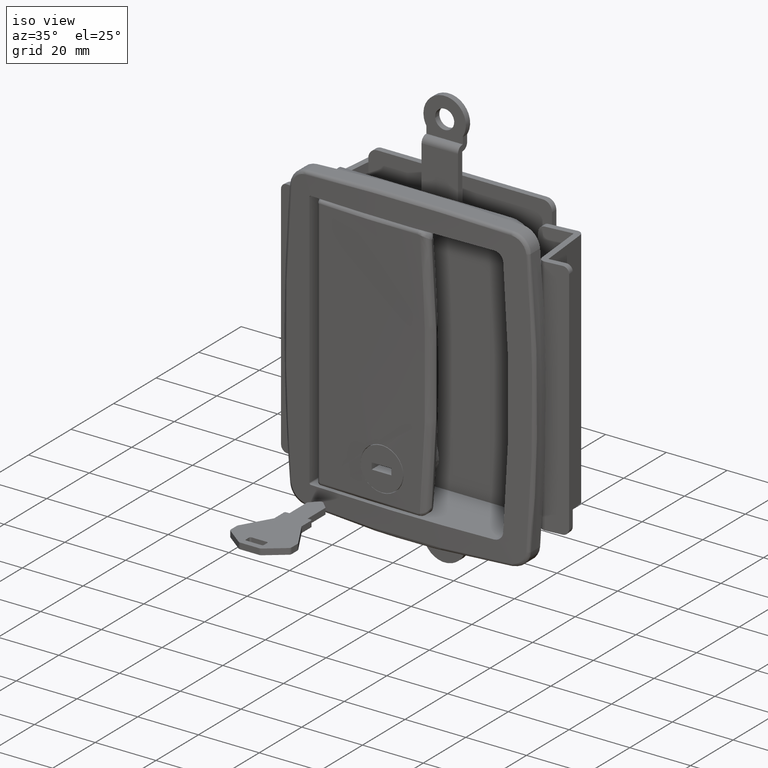
[diagram: clean part render]
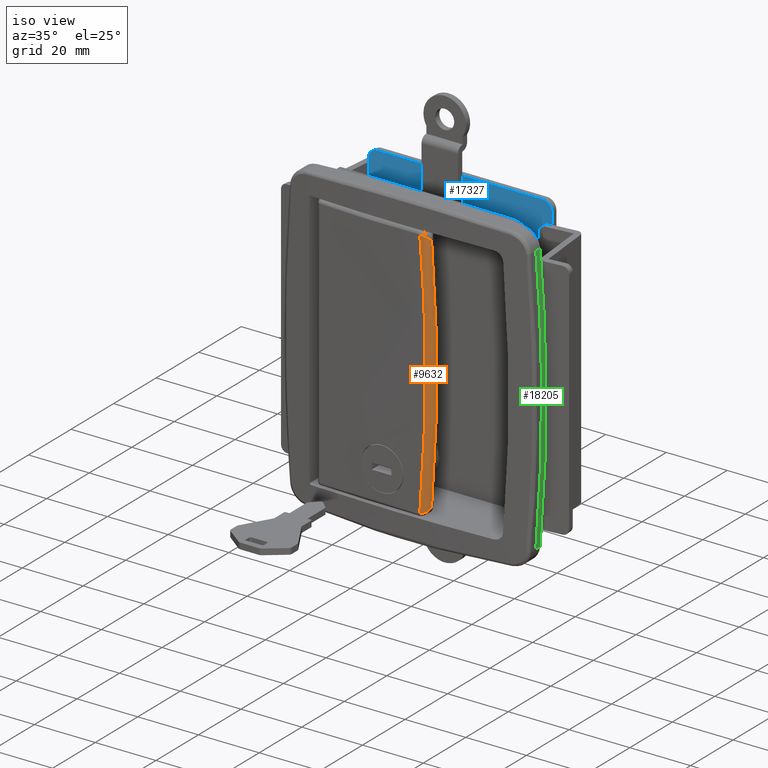
[diagram: same view with three faces highlighted in distinct colors, each labeled with its STEP entity id]
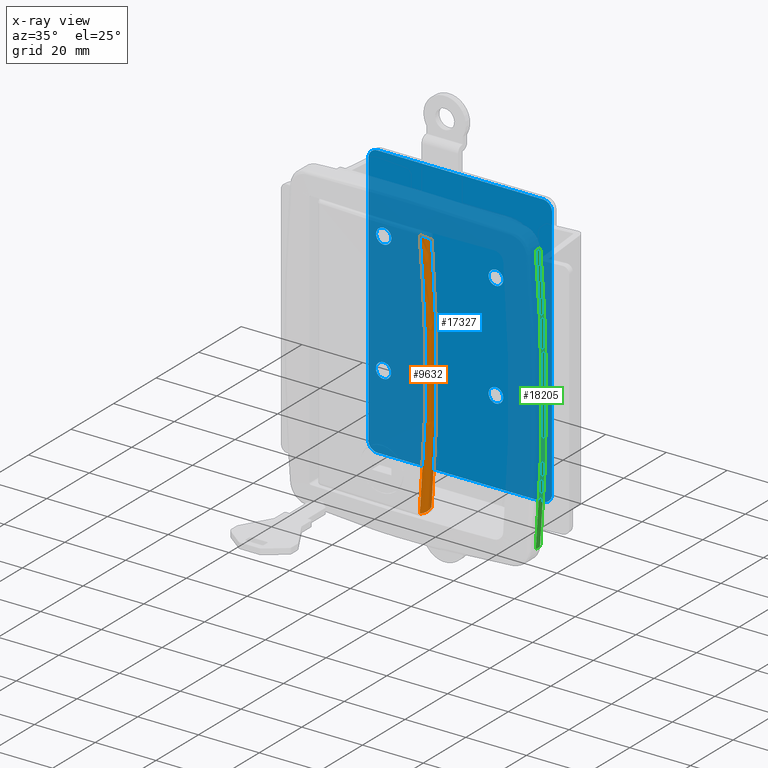
[diagram: x-ray of the same camera — body ghosted, the three highlighted faces saturated]
A machine part, iso view with three faces highlighted in distinct colors.
The next image is the same camera in x-ray (body ghosted, the three faces saturated) — at least one of them is partly hidden behind the body in this view.
Their STEP definitions:

[orange] entity #9632 — the highlighted face is a freeform B-spline surface patch.
#9057=CARTESIAN_POINT('',(46.003863983945202,-4.482355564156539,-41.391434274498252));
#9058=VERTEX_POINT('',#9057);
#9142=CARTESIAN_POINT('',(48.335545737265200,-2.281174498234175,-39.750793650793653));
#9143=VERTEX_POINT('',#9142);
#9175=CARTESIAN_POINT('',(46.003863983945301,-4.482355564156575,-41.391434274498252));
#9176=CARTESIAN_POINT('',(46.167167830635577,-4.481076019090385,-41.366672577074937));
#9177=CARTESIAN_POINT('',(46.325946904312623,-4.462470532601078,-41.335230200107482));
#9178=CARTESIAN_POINT('',(46.557714544627750,-4.411517104672070,-41.277502013211027));
#9179=CARTESIAN_POINT('',(46.633895292452088,-4.390654826432475,-41.256490160833323));
#9180=CARTESIAN_POINT('',(46.746532623330268,-4.353625546742983,-41.222164685216832));
#9181=CARTESIAN_POINT('',(46.783787030265323,-4.340322530823293,-41.210255425662808));
#9182=CARTESIAN_POINT('',(46.856839122804082,-4.312178249448661,-41.185787558939680));
#9183=CARTESIAN_POINT('',(46.892756209293097,-4.297299569544361,-41.173193569152033));
#9184=CARTESIAN_POINT('',(47.069401720184821,-4.219051233900527,-41.108435298684142));
#9185=CARTESIAN_POINT('',(47.201390910251703,-4.144231034285758,-41.050943870973192));
#9186=CARTESIAN_POINT('',(47.355503854106892,-4.036981977322908,-40.971777481546219));
#9187=CARTESIAN_POINT('',(47.385777958922070,-4.014839239979340,-40.955576731966737));
#9188=CARTESIAN_POINT('',(47.445230504749652,-3.969181584064518,-40.922425675873519));
#9189=CARTESIAN_POINT('',(47.474485642310682,-3.945600093122840,-40.905427856938779));
#9190=CARTESIAN_POINT('',(47.559943693324691,-3.873368832437162,-40.853685138556123));
#9191=CARTESIAN_POINT('',(47.613808881445010,-3.823300071060915,-40.818234509305050));
#9192=CARTESIAN_POINT('',(47.766700998906181,-3.667844989410870,-40.709041214775532));
#9193=CARTESIAN_POINT('',(47.857088781160712,-3.557250575331797,-40.632475367537680));
#9194=CARTESIAN_POINT('',(47.976384864066731,-3.381939399586430,-40.511732672510199));
#9195=CARTESIAN_POINT('',(48.013418631557883,-3.321921150749817,-40.470498299204543));
#9196=CARTESIAN_POINT('',(48.081999270425783,-3.198771583362087,-40.385956825226721));
#9197=CARTESIAN_POINT('',(48.113380615483123,-3.135900109728177,-40.342827966012202));
#9198=CARTESIAN_POINT('',(48.198195222748218,-2.945221717431362,-40.211927853800290));
#9199=CARTESIAN_POINT('',(48.242607085171379,-2.814911505480107,-40.122340419555961));
#9200=CARTESIAN_POINT('',(48.291208982386173,-2.616053470009769,-39.984731880892497));
#9201=CARTESIAN_POINT('',(48.304356812537897,-2.549361342222399,-39.938435082741037));
#9202=CARTESIAN_POINT('',(48.319501383708399,-2.448926159308541,-39.868411087292728));
#9203=CARTESIAN_POINT('',(48.323784320397941,-2.415394155200535,-39.844982035967583));
#9204=CARTESIAN_POINT('',(48.329059575551483,-2.365049607034340,-39.809719888764668));
#9205=CARTESIAN_POINT('',(48.330626383707681,-2.348260993733582,-39.797946539616632));
#9206=CARTESIAN_POINT('',(48.333376450051141,-2.314676517828916,-39.774364326857253));
#9207=CARTESIAN_POINT('',(48.334565086228316,-2.297778030785179,-39.762483161280592));
#9208=CARTESIAN_POINT('',(48.335545737265200,-2.281174498234190,-39.750793650793653));
#9209=B_SPLINE_CURVE_WITH_KNOTS('',3,(#9175,#9176,#9177,#9178,#9179,#9180,#9181,#9182,#9183,#9184,#9185,#9186,#9187,#9188,#9189,#9190,#9191,#9192,#9193,#9194,#9195,#9196,#9197,#9198,#9199,#9200,#9201,#9202,#9203,#9204,#9205,#9206,#9207,#9208),.UNSPECIFIED.,.F.,.U.,(4,2,2,2,2,2,2,2,2,2,2,2,2,2,2,2,4),(0.0,0.125000000000011,0.187500000000019,0.218750000000020,0.250000000000021,0.375000000000013,0.406250000000013,0.437500000000013,0.500000000000013,0.625000000000011,0.687500000000009,0.750000000000007,0.875000000000005,0.937500000000004,0.968750000000004,0.984375000000002,1.0),.UNSPECIFIED.);
#9210=EDGE_CURVE('',#9058,#9143,#9209,.T.);
#9407=CARTESIAN_POINT('',(46.003863983945301,-4.482355564156601,41.391434274498152));
#9408=VERTEX_POINT('',#9407);
#9494=CARTESIAN_POINT('',(48.335545737265200,-2.281174498234175,39.750793650793497));
#9495=VERTEX_POINT('',#9494);
#9496=CARTESIAN_POINT('',(48.335545737265200,-2.281174498234190,39.750793650793497));
#9497=CARTESIAN_POINT('',(48.334565086229588,-2.297778030796003,39.762483161265180));
#9498=CARTESIAN_POINT('',(48.333376450051240,-2.314676517829605,39.774364326856130));
#9499=CARTESIAN_POINT('',(48.330626383707781,-2.348260993734361,39.797946539615388));
#9500=CARTESIAN_POINT('',(48.329059575551433,-2.365049607033756,39.809719888765343));
#9501=CARTESIAN_POINT('',(48.323784320397891,-2.415394155200170,39.844982035967952));
#9502=CARTESIAN_POINT('',(48.319501383708399,-2.448926159308419,39.868411087292763));
#9503=CARTESIAN_POINT('',(48.304356812537911,-2.549361342222314,39.938435082741051));
#9504=CARTESIAN_POINT('',(48.291208982386188,-2.616053470009825,39.984731880892312));
#9505=CARTESIAN_POINT('',(48.242607085171393,-2.814911505480138,40.122340419555833));
#9506=CARTESIAN_POINT('',(48.198195222748197,-2.945221717431229,40.211927853800390));
#9507=CARTESIAN_POINT('',(48.113380615483102,-3.135900109728092,40.342827966012237));
#9508=CARTESIAN_POINT('',(48.081999270425783,-3.198771583362005,40.385956825226749));
#9509=CARTESIAN_POINT('',(48.013418631557862,-3.321921150749743,40.470498299204557));
#9510=CARTESIAN_POINT('',(47.976384864066752,-3.381939399586424,40.511732672510163));
#9511=CARTESIAN_POINT('',(47.857088781160741,-3.557250575331793,40.632475367537673));
#9512=CARTESIAN_POINT('',(47.766700998906167,-3.667844989410800,40.709041214775560));
#9513=CARTESIAN_POINT('',(47.613808881445003,-3.823300071060861,40.818234509305093));
#9514=CARTESIAN_POINT('',(47.559943693324733,-3.873368832437193,40.853685138556123));
#9515=CARTESIAN_POINT('',(47.474485642310732,-3.945600093122872,40.905427856938744));
#9516=CARTESIAN_POINT('',(47.445230504749652,-3.969181584064593,40.922425675873498));
#9517=CARTESIAN_POINT('',(47.385777958922063,-4.014839239979411,40.955576731966687));
#9518=CARTESIAN_POINT('',(47.355503854106892,-4.036981977322959,40.971777481546177));
#9519=CARTESIAN_POINT('',(47.201390910251682,-4.144231034285802,41.050943870973178));
#9520=CARTESIAN_POINT('',(47.069401720184757,-4.219051233900507,41.108435298684128));
#9521=CARTESIAN_POINT('',(46.892756209293069,-4.297299569544337,41.173193569152033));
#9522=CARTESIAN_POINT('',(46.856839122804097,-4.312178249448714,41.185787558939722));
#9523=CARTESIAN_POINT('',(46.783787030265309,-4.340322530823338,41.210255425662808));
#9524=CARTESIAN_POINT('',(46.746532623330232,-4.353625546742998,41.222164685216853));
#9525=CARTESIAN_POINT('',(46.633895292452038,-4.390654826432489,41.256490160833330));
#9526=CARTESIAN_POINT('',(46.557714544627672,-4.411517104671924,41.277502013211063));
#9527=CARTESIAN_POINT('',(46.325946904312552,-4.462470532600926,41.335230200107503));
#9528=CARTESIAN_POINT('',(46.167167830635577,-4.481076019090387,41.366672577074851));
#9529=CARTESIAN_POINT('',(46.003863983945301,-4.482355564156575,41.391434274498152));
#9530=B_SPLINE_CURVE_WITH_KNOTS('',3,(#9496,#9497,#9498,#9499,#9500,#9501,#9502,#9503,#9504,#9505,#9506,#9507,#9508,#9509,#9510,#9511,#9512,#9513,#9514,#9515,#9516,#9517,#9518,#9519,#9520,#9521,#9522,#9523,#9524,#9525,#9526,#9527,#9528,#9529),.UNSPECIFIED.,.F.,.U.,(4,2,2,2,2,2,2,2,2,2,2,2,2,2,2,2,4),(0.0,0.015625000000001,0.031250000000003,0.062500000000005,0.125000000000005,0.250000000000007,0.312500000000006,0.375000000000005,0.500000000000000,0.562499999999999,0.593749999999998,0.624999999999998,0.749999999999993,0.781249999999992,0.812499999999991,0.874999999999994,1.0),.UNSPECIFIED.);
#9531=EDGE_CURVE('',#9495,#9408,#9530,.T.);
#9568=CARTESIAN_POINT('',(45.944424483944012,-4.482818433207910,41.884262313382294));
#9569=CARTESIAN_POINT('',(47.183399928913829,-4.473238773045305,27.992570701507653));
#9570=CARTESIAN_POINT('',(47.808544833698839,-4.465382207723904,14.031583039187019));
#9571=CARTESIAN_POINT('',(47.808544833700722,-4.465382207725020,-14.031583039176899));
#9572=CARTESIAN_POINT('',(47.183399927473118,-4.473238773080194,-27.992570701390530));
#9573=CARTESIAN_POINT('',(45.944424483943997,-4.482818433207921,-41.884262313382450));
#9574=CARTESIAN_POINT('',(45.952224953525565,-4.482757908323785,41.884955392774266));
#9575=CARTESIAN_POINT('',(47.191212267884289,-4.473161322991664,27.993032917005600));
#9576=CARTESIAN_POINT('',(47.816363002391682,-4.465296188053644,14.031814854512817));
#9577=CARTESIAN_POINT('',(47.816363002393587,-4.465296188054193,-14.031814854502702));
#9578=CARTESIAN_POINT('',(47.191212266444026,-4.473161323014717,-27.993032916888534));
#9579=CARTESIAN_POINT('',(45.952224953525558,-4.482757908323796,-41.884955392774437));
#9580=CARTESIAN_POINT('',(48.134479648462317,-4.465825503015744,42.078850868071449));
#9581=CARTESIAN_POINT('',(49.374422613850108,-4.451517387796734,28.122202127536873));
#9582=CARTESIAN_POINT('',(50.000000000000014,-4.441270646794733,14.096561541609892));
#9583=CARTESIAN_POINT('',(50.000000000000014,-4.441270646636514,-14.096561541599739));
#9584=CARTESIAN_POINT('',(49.374422612534403,-4.451517384511961,-28.122202127434704));
#9585=CARTESIAN_POINT('',(48.134479648462310,-4.465825503015756,-42.078850868071619));
#9586=CARTESIAN_POINT('',(48.134346513724097,-2.274935119388926,42.080349363064521));
#9587=CARTESIAN_POINT('',(49.374341054864999,-2.265366888012337,28.123621033015205));
#9588=CARTESIAN_POINT('',(49.999999999999858,-2.257527633770277,14.097273867621160));
#9589=CARTESIAN_POINT('',(50.000000000000171,-2.257527633593733,-14.097273867611005));
#9590=CARTESIAN_POINT('',(49.374341054868530,-2.265366884943239,-28.123621033028993));
#9591=CARTESIAN_POINT('',(48.134346513724083,-2.274935119388937,-42.080349363064684));
#9592=CARTESIAN_POINT('',(48.134346039410715,-2.267129728826061,42.080354701687931));
#9593=CARTESIAN_POINT('',(49.374340763983589,-2.257569947477128,28.123626093564170));
#9594=CARTESIAN_POINT('',(49.999999999999872,-2.249734990721800,14.097276409542220));
#9595=CARTESIAN_POINT('',(50.000000000000185,-2.249734990545191,-14.097276409532061));
#9596=CARTESIAN_POINT('',(49.374340763991839,-2.257569944408798,-28.123626093578377));
#9597=CARTESIAN_POINT('',(48.134346039410694,-2.267129728826071,-42.080354701688094));
#9605=(BOUNDED_SURFACE()B_SPLINE_SURFACE(3,2,((#9568,#9574,#9580,#9586,#9592),(#9569,#9575,#9581,#9587,#9593),(#9570,#9576,#9582,#9588,#9594),(#9571,#9577,#9583,#9589,#9595),(#9572,#9578,#9584,#9590,#9596),(#9573,#9579,#9585,#9591,#9597)),.UNSPECIFIED.,.F.,.F.,.U.)B_SPLINE_SURFACE_WITH_KNOTS((4,2,4),(3,1,1,3),(0.0,42.168857488447230,84.337714976894446),(0.0,0.018401957116350,3.643577220313938,3.661917717596507),.UNSPECIFIED.)GEOMETRIC_REPRESENTATION_ITEM()RATIONAL_B_SPLINE_SURFACE(((1.002945856640569,1.001472928320284,0.709833944433331,1.001468008956047,1.002936017912094),(1.002938106130283,1.001469053065142,0.710597367529789,1.001464146643687,1.002928293287374),(1.002934161739190,1.001467080869595,0.710985888949749,1.001462181034984,1.002924362069968),(1.002934161739190,1.001467080869595,0.710985888949749,1.001462181034984,1.002924362069968),(1.002938106130283,1.001469053065142,0.710597367529791,1.001464146643687,1.002928293287374),(1.002945856640569,1.001472928320284,0.709833944433331,1.001468008956047,1.002936017912094)))REPRESENTATION_ITEM('')SURFACE());
#9606=CARTESIAN_POINT('',(46.003863983945202,-4.482355564156539,-41.391434274498252));
#9607=CARTESIAN_POINT('',(46.610605033510673,-4.477601527235818,-34.506545112316232));
#9608=CARTESIAN_POINT('',(47.520338746815483,-4.468673203468087,-20.723066203054969));
#9609=CARTESIAN_POINT('',(47.824204110856968,-4.465209915987755,-6.912257759506068));
#9610=CARTESIAN_POINT('',(47.824204110856833,-4.465209915987757,6.912257759516186));
#9611=CARTESIAN_POINT('',(47.520338746815611,-4.468673203468084,20.723066203044649));
#9612=CARTESIAN_POINT('',(46.610605033510687,-4.477601527235845,34.506545112316132));
#9613=CARTESIAN_POINT('',(46.003863983945301,-4.482355564156601,41.391434274498152));
#9614=B_SPLINE_CURVE_WITH_KNOTS('',3,(#9606,#9607,#9608,#9609,#9610,#9611,#9612,#9613),.UNSPECIFIED.,.F.,.U.,(4,1,2,1,4),(0.0,0.250000000000000,0.500000000000000,0.750000000000000,1.0),.UNSPECIFIED.);
#9615=EDGE_CURVE('',#9058,#9408,#9614,.T.);
#9616=ORIENTED_EDGE('',*,*,#9615,.F.);
#9617=ORIENTED_EDGE('',*,*,#9210,.T.);
#9618=CARTESIAN_POINT('',(48.335545737265200,-2.281174498234175,39.750793650793497));
#9619=CARTESIAN_POINT('',(48.890363763596049,-2.276696349804024,33.137277840245503));
#9620=CARTESIAN_POINT('',(49.722226408625119,-2.268484928837155,19.898614931253022));
#9621=CARTESIAN_POINT('',(49.999999999999929,-2.265343065240271,6.636749060499938));
#9622=CARTESIAN_POINT('',(50.000000000000078,-2.265343065240269,-6.636749060489792));
#9623=CARTESIAN_POINT('',(49.722226408624898,-2.268484928837046,-19.898614931263491));
#9624=CARTESIAN_POINT('',(48.890363763596163,-2.276696349804044,-33.137277840245652));
#9625=CARTESIAN_POINT('',(48.335545737265313,-2.281174498234195,-39.750793650793653));
#9626=B_SPLINE_CURVE_WITH_KNOTS('',3,(#9618,#9619,#9620,#9621,#9622,#9623,#9624,#9625),.UNSPECIFIED.,.F.,.U.,(4,1,2,1,4),(0.0,0.250000000000000,0.500000000000000,0.750000000000000,1.0),.UNSPECIFIED.);
#9627=EDGE_CURVE('',#9495,#9143,#9626,.T.);
#9628=ORIENTED_EDGE('',*,*,#9627,.F.);
#9629=ORIENTED_EDGE('',*,*,#9531,.T.);
#9630=EDGE_LOOP('',(#9616,#9617,#9628,#9629));
#9631=FACE_OUTER_BOUND('',#9630,.T.);
#9632=ADVANCED_FACE('',(#9631),#9605,.T.);

[blue] entity #17327 — the highlighted face is a freeform B-spline surface patch.
#14126=CARTESIAN_POINT('',(9.517476184166728,27.0,-19.704914412713890));
#14127=VERTEX_POINT('',#14126);
#14128=CARTESIAN_POINT('',(11.999999999999320,27.0,-22.500000000000000));
#14129=VERTEX_POINT('',#14128);
#14130=CARTESIAN_POINT('',(9.517476184166728,27.0,-19.704914412713887));
#14131=CARTESIAN_POINT('',(9.499999999999320,27.000000000000007,-19.851939700219198));
#14132=CARTESIAN_POINT('',(9.499999999999320,27.0,-20.0));
#14133=CARTESIAN_POINT('',(9.499999999999320,27.000000000000011,-22.500000000000000));
#14134=CARTESIAN_POINT('',(11.999999999999320,27.0,-22.500000000000000));
#14142=(BOUNDED_CURVE()B_SPLINE_CURVE(2,(#14130,#14131,#14132,#14133,#14134),.UNSPECIFIED.,.F.,.U.)B_SPLINE_CURVE_WITH_KNOTS((3,2,3),(0.229562473427931,0.250000000000000,0.500000000000000),.UNSPECIFIED.)CURVE()GEOMETRIC_REPRESENTATION_ITEM()RATIONAL_B_SPLINE_CURVE((0.956026754015965,0.976055948230885,1.0,0.707106781186548,1.0))REPRESENTATION_ITEM(''));
#14143=EDGE_CURVE('',#14127,#14129,#14142,.T.);
#14145=CARTESIAN_POINT('',(14.495336996017620,27.0,-20.152621349431790));
#14146=VERTEX_POINT('',#14145);
#14147=CARTESIAN_POINT('',(11.999999999999320,27.0,-22.500000000000000));
#14148=CARTESIAN_POINT('',(14.351765166140591,27.000000000000007,-22.500000000000007));
#14149=CARTESIAN_POINT('',(14.495336996017613,26.999999999999996,-20.152621349431797));
#14157=(BOUNDED_CURVE()B_SPLINE_CURVE(2,(#14147,#14148,#14149),.UNSPECIFIED.,.F.,.U.)B_SPLINE_CURVE_WITH_KNOTS((3,3),(0.500000000000000,0.739332962159731),.UNSPECIFIED.)CURVE()GEOMETRIC_REPRESENTATION_ITEM()RATIONAL_B_SPLINE_CURVE((1.0,0.719603993379513,0.976072041496951))REPRESENTATION_ITEM(''));
#14158=EDGE_CURVE('',#14129,#14146,#14157,.T.);
#14225=CARTESIAN_POINT('',(11.999999999999320,27.0,-17.500000000000000));
#14226=VERTEX_POINT('',#14225);
#14227=CARTESIAN_POINT('',(11.999999999999320,27.0,-17.500000000000000));
#14228=CARTESIAN_POINT('',(9.779563686281424,26.999999999999996,-17.500000000000000));
#14229=CARTESIAN_POINT('',(9.517476184166728,27.000000000000004,-19.704914412713890));
#14237=(BOUNDED_CURVE()B_SPLINE_CURVE(2,(#14227,#14228,#14229),.UNSPECIFIED.,.F.,.U.)B_SPLINE_CURVE_WITH_KNOTS((3,3),(0.0,0.229562473427931),.UNSPECIFIED.)CURVE()GEOMETRIC_REPRESENTATION_ITEM()RATIONAL_B_SPLINE_CURVE((1.0,0.731050832955662,0.956026754015965))REPRESENTATION_ITEM(''));
#14238=EDGE_CURVE('',#14226,#14127,#14237,.T.);
#14272=CARTESIAN_POINT('',(14.495336996017617,26.999999999999996,-20.152621349431797));
#14273=CARTESIAN_POINT('',(14.499999999999318,27.000000000000004,-20.076381908842791));
#14274=CARTESIAN_POINT('',(14.499999999999320,27.0,-20.0));
#14275=CARTESIAN_POINT('',(14.499999999999321,27.000000000000011,-17.499999999999996));
#14276=CARTESIAN_POINT('',(11.999999999999320,27.0,-17.500000000000000));
#14284=(BOUNDED_CURVE()B_SPLINE_CURVE(2,(#14272,#14273,#14274,#14275,#14276),.UNSPECIFIED.,.F.,.U.)B_SPLINE_CURVE_WITH_KNOTS((3,2,3),(0.739332962159731,0.750000000000000,1.0),.UNSPECIFIED.)CURVE()GEOMETRIC_REPRESENTATION_ITEM()RATIONAL_B_SPLINE_CURVE((0.976072041496951,0.987502787807035,1.0,0.707106781186548,1.0))REPRESENTATION_ITEM(''));
#14285=EDGE_CURVE('',#14146,#14226,#14284,.T.);
#14312=CARTESIAN_POINT('',(9.587556184167170,27.0,20.295085587286120));
#14313=VERTEX_POINT('',#14312);
#14314=CARTESIAN_POINT('',(12.070079999999759,27.0,17.500000000000000));
#14315=VERTEX_POINT('',#14314);
#14316=CARTESIAN_POINT('',(9.587556184167170,27.000000000000007,20.295085587286113));
#14317=CARTESIAN_POINT('',(9.570079999999759,27.0,20.148060299780798));
#14318=CARTESIAN_POINT('',(9.570079999999759,27.0,20.0));
#14319=CARTESIAN_POINT('',(9.570079999999759,27.000000000000011,17.499999999999996));
#14320=CARTESIAN_POINT('',(12.070079999999759,27.0,17.500000000000000));
#14328=(BOUNDED_CURVE()B_SPLINE_CURVE(2,(#14316,#14317,#14318,#14319,#14320),.UNSPECIFIED.,.F.,.U.)B_SPLINE_CURVE_WITH_KNOTS((3,2,3),(0.229562473427931,0.250000000000000,0.500000000000000),.UNSPECIFIED.)CURVE()GEOMETRIC_REPRESENTATION_ITEM()RATIONAL_B_SPLINE_CURVE((0.956026754015965,0.976055948230885,1.0,0.707106781186548,1.0))REPRESENTATION_ITEM(''));
#14329=EDGE_CURVE('',#14313,#14315,#14328,.T.);
#14331=CARTESIAN_POINT('',(14.565416996018060,27.0,19.847378650568210));
#14332=VERTEX_POINT('',#14331);
#14333=CARTESIAN_POINT('',(12.070079999999759,27.0,17.500000000000000));
#14334=CARTESIAN_POINT('',(14.421845166141027,27.000000000000007,17.500000000000000));
#14335=CARTESIAN_POINT('',(14.565416996018058,26.999999999999996,19.847378650568210));
#14343=(BOUNDED_CURVE()B_SPLINE_CURVE(2,(#14333,#14334,#14335),.UNSPECIFIED.,.F.,.U.)B_SPLINE_CURVE_WITH_KNOTS((3,3),(0.500000000000000,0.739332962159731),.UNSPECIFIED.)CURVE()GEOMETRIC_REPRESENTATION_ITEM()RATIONAL_B_SPLINE_CURVE((1.0,0.719603993379513,0.976072041496951))REPRESENTATION_ITEM(''));
#14344=EDGE_CURVE('',#14315,#14332,#14343,.T.);
#14411=CARTESIAN_POINT('',(12.070079999999759,27.0,22.500000000000000));
#14412=VERTEX_POINT('',#14411);
#14413=CARTESIAN_POINT('',(12.070079999999759,27.0,22.500000000000000));
#14414=CARTESIAN_POINT('',(9.849643686281866,27.000000000000007,22.499999999999996));
#14415=CARTESIAN_POINT('',(9.587556184167170,27.000000000000007,20.295085587286113));
#14423=(BOUNDED_CURVE()B_SPLINE_CURVE(2,(#14413,#14414,#14415),.UNSPECIFIED.,.F.,.U.)B_SPLINE_CURVE_WITH_KNOTS((3,3),(0.0,0.229562473427931),.UNSPECIFIED.)CURVE()GEOMETRIC_REPRESENTATION_ITEM()RATIONAL_B_SPLINE_CURVE((1.0,0.731050832955662,0.956026754015965))REPRESENTATION_ITEM(''));
#14424=EDGE_CURVE('',#14412,#14313,#14423,.T.);
#14458=CARTESIAN_POINT('',(14.565416996018062,26.999999999999996,19.847378650568210));
#14459=CARTESIAN_POINT('',(14.570079999999757,27.000000000000004,19.923618091157216));
#14460=CARTESIAN_POINT('',(14.570079999999759,27.0,20.0));
#14461=CARTESIAN_POINT('',(14.570079999999754,27.000000000000011,22.500000000000000));
#14462=CARTESIAN_POINT('',(12.070079999999759,27.0,22.500000000000000));
#14470=(BOUNDED_CURVE()B_SPLINE_CURVE(2,(#14458,#14459,#14460,#14461,#14462),.UNSPECIFIED.,.F.,.U.)B_SPLINE_CURVE_WITH_KNOTS((3,2,3),(0.739332962159731,0.750000000000000,1.0),.UNSPECIFIED.)CURVE()GEOMETRIC_REPRESENTATION_ITEM()RATIONAL_B_SPLINE_CURVE((0.976072041496951,0.987502787807035,1.0,0.707106781186548,1.0))REPRESENTATION_ITEM(''));
#14471=EDGE_CURVE('',#14332,#14412,#14470,.T.);
#15234=CARTESIAN_POINT('',(46.616777136794397,27.0,17.783282163746652));
#15235=VERTEX_POINT('',#15234);
#15236=CARTESIAN_POINT('',(48.999999999999403,27.0,15.100000000000000));
#15237=VERTEX_POINT('',#15236);
#15238=CARTESIAN_POINT('',(46.616777136794411,26.999999999999996,17.783282163746652));
#15239=CARTESIAN_POINT('',(46.599999999999390,27.000000000000004,17.642137887741040));
#15240=CARTESIAN_POINT('',(46.599999999999397,27.0,17.500000000000000));
#15241=CARTESIAN_POINT('',(46.599999999999397,27.0,15.100000000000005));
#15242=CARTESIAN_POINT('',(48.999999999999403,27.0,15.100000000000000));
#15250=(BOUNDED_CURVE()B_SPLINE_CURVE(2,(#15238,#15239,#15240,#15241,#15242),.UNSPECIFIED.,.F.,.U.)B_SPLINE_CURVE_WITH_KNOTS((3,2,3),(0.229562473434742,0.250000000000000,0.500000000000000),.UNSPECIFIED.)CURVE()GEOMETRIC_REPRESENTATION_ITEM()RATIONAL_B_SPLINE_CURVE((0.956026754029314,0.976055948238865,1.0,0.707106781186547,1.0))REPRESENTATION_ITEM(''));
#15251=EDGE_CURVE('',#15235,#15237,#15250,.T.);
#15253=CARTESIAN_POINT('',(51.395523516180113,27.0,17.353483504597019));
#15254=VERTEX_POINT('',#15253);
#15255=CARTESIAN_POINT('',(48.999999999999403,27.0,15.100000000000000));
#15256=CARTESIAN_POINT('',(51.257694559592338,27.000000000000007,15.100000000000000));
#15257=CARTESIAN_POINT('',(51.395523516180113,27.000000000000004,17.353483504597023));
#15265=(BOUNDED_CURVE()B_SPLINE_CURVE(2,(#15255,#15256,#15257),.UNSPECIFIED.,.F.,.U.)B_SPLINE_CURVE_WITH_KNOTS((3,3),(0.500000000000000,0.739332962167156),.UNSPECIFIED.)CURVE()GEOMETRIC_REPRESENTATION_ITEM()RATIONAL_B_SPLINE_CURVE((1.0,0.719603993370814,0.976072041512864))REPRESENTATION_ITEM(''));
#15266=EDGE_CURVE('',#15237,#15254,#15265,.T.);
#15333=CARTESIAN_POINT('',(48.999999999999403,27.0,19.899999999999999));
#15334=VERTEX_POINT('',#15333);
#15335=CARTESIAN_POINT('',(48.999999999999403,27.0,19.899999999999999));
#15336=CARTESIAN_POINT('',(46.868381138743715,26.999999999999996,19.900000000000006));
#15337=CARTESIAN_POINT('',(46.616777136794397,27.000000000000004,17.783282163746648));
#15345=(BOUNDED_CURVE()B_SPLINE_CURVE(2,(#15335,#15336,#15337),.UNSPECIFIED.,.F.,.U.)B_SPLINE_CURVE_WITH_KNOTS((3,3),(0.0,0.229562473434742),.UNSPECIFIED.)CURVE()GEOMETRIC_REPRESENTATION_ITEM()RATIONAL_B_SPLINE_CURVE((1.0,0.731050832947683,0.956026754029314))REPRESENTATION_ITEM(''));
#15346=EDGE_CURVE('',#15334,#15235,#15345,.T.);
#15380=CARTESIAN_POINT('',(51.395523516180113,27.0,17.353483504597012));
#15381=CARTESIAN_POINT('',(51.399999999999402,27.000000000000004,17.426673367562604));
#15382=CARTESIAN_POINT('',(51.399999999999402,27.0,17.500000000000000));
#15383=CARTESIAN_POINT('',(51.399999999999409,27.0,19.900000000000009));
#15384=CARTESIAN_POINT('',(48.999999999999403,27.0,19.899999999999999));
#15392=(BOUNDED_CURVE()B_SPLINE_CURVE(2,(#15380,#15381,#15382,#15383,#15384),.UNSPECIFIED.,.F.,.U.)B_SPLINE_CURVE_WITH_KNOTS((3,2,3),(0.739332962167155,0.750000000000000,1.0),.UNSPECIFIED.)CURVE()GEOMETRIC_REPRESENTATION_ITEM()RATIONAL_B_SPLINE_CURVE((0.976072041512863,0.987502787815733,1.0,0.707106781186547,1.0))REPRESENTATION_ITEM(''));
#15393=EDGE_CURVE('',#15254,#15334,#15392,.T.);
#15420=CARTESIAN_POINT('',(46.616777136794397,27.0,-17.216717836253359));
#15421=VERTEX_POINT('',#15420);
#15422=CARTESIAN_POINT('',(48.999999999999403,27.0,-19.899999999999999));
#15423=VERTEX_POINT('',#15422);
#15424=CARTESIAN_POINT('',(46.616777136794404,27.000000000000004,-17.216717836253363));
#15425=CARTESIAN_POINT('',(46.599999999999397,27.000000000000004,-17.357862112258960));
#15426=CARTESIAN_POINT('',(46.599999999999397,27.0,-17.500000000000000));
#15427=CARTESIAN_POINT('',(46.599999999999397,27.0,-19.900000000000009));
#15428=CARTESIAN_POINT('',(48.999999999999403,27.0,-19.899999999999999));
#15436=(BOUNDED_CURVE()B_SPLINE_CURVE(2,(#15424,#15425,#15426,#15427,#15428),.UNSPECIFIED.,.F.,.U.)B_SPLINE_CURVE_WITH_KNOTS((3,2,3),(0.229562473434742,0.250000000000000,0.500000000000000),.UNSPECIFIED.)CURVE()GEOMETRIC_REPRESENTATION_ITEM()RATIONAL_B_SPLINE_CURVE((0.956026754029314,0.976055948238865,1.0,0.707106781186547,1.0))REPRESENTATION_ITEM(''));
#15437=EDGE_CURVE('',#15421,#15423,#15436,.T.);
#15439=CARTESIAN_POINT('',(51.395523516180113,27.0,-17.646516495402992));
#15440=VERTEX_POINT('',#15439);
#15441=CARTESIAN_POINT('',(48.999999999999403,27.0,-19.899999999999999));
#15442=CARTESIAN_POINT('',(51.257694559592338,27.000000000000007,-19.900000000000006));
#15443=CARTESIAN_POINT('',(51.395523516180106,27.000000000000004,-17.646516495402988));
#15451=(BOUNDED_CURVE()B_SPLINE_CURVE(2,(#15441,#15442,#15443),.UNSPECIFIED.,.F.,.U.)B_SPLINE_CURVE_WITH_KNOTS((3,3),(0.500000000000000,0.739332962167156),.UNSPECIFIED.)CURVE()GEOMETRIC_REPRESENTATION_ITEM()RATIONAL_B_SPLINE_CURVE((1.0,0.719603993370814,0.976072041512864))REPRESENTATION_ITEM(''));
#15452=EDGE_CURVE('',#15423,#15440,#15451,.T.);
#15519=CARTESIAN_POINT('',(48.999999999999403,27.0,-15.100000000000000));
#15520=VERTEX_POINT('',#15519);
#15521=CARTESIAN_POINT('',(48.999999999999403,27.0,-15.100000000000000));
#15522=CARTESIAN_POINT('',(46.868381138743715,26.999999999999996,-15.100000000000001));
#15523=CARTESIAN_POINT('',(46.616777136794397,27.000000000000004,-17.216717836253359));
#15531=(BOUNDED_CURVE()B_SPLINE_CURVE(2,(#15521,#15522,#15523),.UNSPECIFIED.,.F.,.U.)B_SPLINE_CURVE_WITH_KNOTS((3,3),(0.0,0.229562473434742),.UNSPECIFIED.)CURVE()GEOMETRIC_REPRESENTATION_ITEM()RATIONAL_B_SPLINE_CURVE((1.0,0.731050832947683,0.956026754029314))REPRESENTATION_ITEM(''));
#15532=EDGE_CURVE('',#15520,#15421,#15531,.T.);
#15566=CARTESIAN_POINT('',(51.395523516180113,26.999999999999993,-17.646516495402985));
#15567=CARTESIAN_POINT('',(51.399999999999395,27.0,-17.573326632437396));
#15568=CARTESIAN_POINT('',(51.399999999999402,27.0,-17.500000000000000));
#15569=CARTESIAN_POINT('',(51.399999999999409,27.0,-15.100000000000005));
#15570=CARTESIAN_POINT('',(48.999999999999403,27.0,-15.100000000000000));
#15578=(BOUNDED_CURVE()B_SPLINE_CURVE(2,(#15566,#15567,#15568,#15569,#15570),.UNSPECIFIED.,.F.,.U.)B_SPLINE_CURVE_WITH_KNOTS((3,2,3),(0.739332962167155,0.750000000000000,1.0),.UNSPECIFIED.)CURVE()GEOMETRIC_REPRESENTATION_ITEM()RATIONAL_B_SPLINE_CURVE((0.976072041512863,0.987502787815733,1.0,0.707106781186547,1.0))REPRESENTATION_ITEM(''));
#15579=EDGE_CURVE('',#15440,#15520,#15578,.T.);
#15598=CARTESIAN_POINT('',(67.500000000000000,27.0,42.0));
#15599=VERTEX_POINT('',#15598);
#15600=CARTESIAN_POINT('',(64.500000000000000,27.0,45.0));
#15601=VERTEX_POINT('',#15600);
#15602=CARTESIAN_POINT('',(67.500000000000000,27.0,42.0));
#15603=CARTESIAN_POINT('',(67.500000000000000,27.000000000000011,45.000000000000014));
#15604=CARTESIAN_POINT('',(64.500000000000000,27.0,45.000000000000007));
#15612=(BOUNDED_CURVE()B_SPLINE_CURVE(2,(#15602,#15603,#15604),.UNSPECIFIED.,.F.,.U.)CURVE()GEOMETRIC_REPRESENTATION_ITEM()QUASI_UNIFORM_CURVE()RATIONAL_B_SPLINE_CURVE((1.0,0.707106781186548,1.0))REPRESENTATION_ITEM(''));
#15613=EDGE_CURVE('',#15599,#15601,#15612,.T.);
#15676=CARTESIAN_POINT('',(6.999999999999660,27.0,42.0));
#15677=VERTEX_POINT('',#15676);
#15683=CARTESIAN_POINT('',(9.999999999999650,27.0,45.0));
#15684=VERTEX_POINT('',#15683);
#15685=CARTESIAN_POINT('',(9.999999999999650,27.0,45.000000000000007));
#15686=CARTESIAN_POINT('',(6.999999999999650,27.000000000000011,45.000000000000014));
#15687=CARTESIAN_POINT('',(6.999999999999650,27.0,42.0));
#15695=(BOUNDED_CURVE()B_SPLINE_CURVE(2,(#15685,#15686,#15687),.UNSPECIFIED.,.F.,.U.)CURVE()GEOMETRIC_REPRESENTATION_ITEM()QUASI_UNIFORM_CURVE()RATIONAL_B_SPLINE_CURVE((1.0,0.707106781186548,1.0))REPRESENTATION_ITEM(''));
#15696=EDGE_CURVE('',#15684,#15677,#15695,.T.);
#15737=CARTESIAN_POINT('',(9.999999999999650,27.0,-45.0));
#15738=VERTEX_POINT('',#15737);
#15744=CARTESIAN_POINT('',(6.999999999999660,27.0,-42.0));
#15745=VERTEX_POINT('',#15744);
#15746=CARTESIAN_POINT('',(6.999999999999650,27.0,-42.0));
#15747=CARTESIAN_POINT('',(6.999999999999650,27.000000000000011,-45.000000000000014));
#15748=CARTESIAN_POINT('',(9.999999999999650,27.0,-45.000000000000007));
#15756=(BOUNDED_CURVE()B_SPLINE_CURVE(2,(#15746,#15747,#15748),.UNSPECIFIED.,.F.,.U.)CURVE()GEOMETRIC_REPRESENTATION_ITEM()QUASI_UNIFORM_CURVE()RATIONAL_B_SPLINE_CURVE((1.0,0.707106781186548,1.0))REPRESENTATION_ITEM(''));
#15757=EDGE_CURVE('',#15745,#15738,#15756,.T.);
#15781=CARTESIAN_POINT('',(64.500000000000000,27.0,-45.0));
#15782=VERTEX_POINT('',#15781);
#15783=CARTESIAN_POINT('',(67.500000000000000,27.0,-42.0));
#15784=VERTEX_POINT('',#15783);
#15785=CARTESIAN_POINT('',(64.500000000000000,27.0,-45.000000000000007));
#15786=CARTESIAN_POINT('',(67.500000000000000,27.000000000000011,-45.000000000000014));
#15787=CARTESIAN_POINT('',(67.500000000000000,27.0,-42.0));
#15795=(BOUNDED_CURVE()B_SPLINE_CURVE(2,(#15785,#15786,#15787),.UNSPECIFIED.,.F.,.U.)CURVE()GEOMETRIC_REPRESENTATION_ITEM()QUASI_UNIFORM_CURVE()RATIONAL_B_SPLINE_CURVE((1.0,0.707106781186548,1.0))REPRESENTATION_ITEM(''));
#15796=EDGE_CURVE('',#15782,#15784,#15795,.T.);
#17251=CARTESIAN_POINT('',(9.999999999999650,27.0,-45.0));
#17252=CARTESIAN_POINT('',(64.500000000000000,27.0,-45.0));
#17253=QUASI_UNIFORM_CURVE('',1,(#17251,#17252),.UNSPECIFIED.,.F.,.U.);
#17254=EDGE_CURVE('',#15738,#15782,#17253,.T.);
#17271=CARTESIAN_POINT('',(9.999999999999650,27.0,45.0));
#17272=CARTESIAN_POINT('',(64.500000000000000,27.0,45.0));
#17273=QUASI_UNIFORM_CURVE('',1,(#17271,#17272),.UNSPECIFIED.,.F.,.U.);
#17274=EDGE_CURVE('',#15684,#15601,#17273,.T.);
#17280=CARTESIAN_POINT('',(3.978025117260382,27.0,-49.495499825562533));
#17281=CARTESIAN_POINT('',(3.978025117260382,27.0,49.495502239550653));
#17282=CARTESIAN_POINT('',(70.521976505475735,27.0,-49.495499825562533));
#17283=CARTESIAN_POINT('',(70.521976505475735,27.0,49.495502239550653));
#17284=B_SPLINE_SURFACE_WITH_KNOTS('',1,1,((#17280,#17282),(#17281,#17283)),.UNSPECIFIED.,.F.,.F.,.U.,(2,2),(2,2),(0.0,98.991002065113179),(0.0,66.543951388215348),.UNSPECIFIED.);
#17285=ORIENTED_EDGE('',*,*,#17254,.T.);
#17286=ORIENTED_EDGE('',*,*,#15796,.T.);
#17287=CARTESIAN_POINT('',(67.500000000000000,27.0,42.0));
#17288=CARTESIAN_POINT('',(67.500000000000000,27.0,-42.0));
#17289=QUASI_UNIFORM_CURVE('',1,(#17287,#17288),.UNSPECIFIED.,.F.,.U.);
#17290=EDGE_CURVE('',#15599,#15784,#17289,.T.);
#17291=ORIENTED_EDGE('',*,*,#17290,.F.);
#17292=ORIENTED_EDGE('',*,*,#15613,.T.);
#17293=ORIENTED_EDGE('',*,*,#17274,.F.);
#17294=ORIENTED_EDGE('',*,*,#15696,.T.);
#17295=CARTESIAN_POINT('',(6.999999999999660,27.0,42.0));
#17296=CARTESIAN_POINT('',(6.999999999999660,27.0,-42.0));
#17297=QUASI_UNIFORM_CURVE('',1,(#17295,#17296),.UNSPECIFIED.,.F.,.U.);
#17298=EDGE_CURVE('',#15677,#15745,#17297,.T.);
#17299=ORIENTED_EDGE('',*,*,#17298,.T.);
#17300=ORIENTED_EDGE('',*,*,#15757,.T.);
#17301=EDGE_LOOP('',(#17285,#17286,#17291,#17292,#17293,#17294,#17299,#17300));
#17302=FACE_OUTER_BOUND('',#17301,.T.);
#17303=ORIENTED_EDGE('',*,*,#15452,.F.);
#17304=ORIENTED_EDGE('',*,*,#15437,.F.);
#17305=ORIENTED_EDGE('',*,*,#15532,.F.);
#17306=ORIENTED_EDGE('',*,*,#15579,.F.);
#17307=EDGE_LOOP('',(#17303,#17304,#17305,#17306));
#17308=FACE_BOUND('',#17307,.T.);
#17309=ORIENTED_EDGE('',*,*,#15266,.F.);
#17310=ORIENTED_EDGE('',*,*,#15251,.F.);
#17311=ORIENTED_EDGE('',*,*,#15346,.F.);
#17312=ORIENTED_EDGE('',*,*,#15393,.F.);
#17313=EDGE_LOOP('',(#17309,#17310,#17311,#17312));
#17314=FACE_BOUND('',#17313,.T.);
#17315=ORIENTED_EDGE('',*,*,#14344,.F.);
#17316=ORIENTED_EDGE('',*,*,#14329,.F.);
#17317=ORIENTED_EDGE('',*,*,#14424,.F.);
#17318=ORIENTED_EDGE('',*,*,#14471,.F.);
#17319=EDGE_LOOP('',(#17315,#17316,#17317,#17318));
#17320=FACE_BOUND('',#17319,.T.);
#17321=ORIENTED_EDGE('',*,*,#14158,.F.);
#17322=ORIENTED_EDGE('',*,*,#14143,.F.);
#17323=ORIENTED_EDGE('',*,*,#14238,.F.);
#17324=ORIENTED_EDGE('',*,*,#14285,.F.);
#17325=EDGE_LOOP('',(#17321,#17322,#17323,#17324));
#17326=FACE_BOUND('',#17325,.T.);
#17327=ADVANCED_FACE('',(#17302,#17308,#17314,#17320,#17326),#17284,.F.);

[green] entity #18205 — the highlighted face is a freeform B-spline surface patch.
#18106=CARTESIAN_POINT('',(81.059560862175900,0.0,44.380866362875203));
#18107=VERTEX_POINT('',#18106);
#18123=CARTESIAN_POINT('',(81.059560862175900,2.0,44.380866362875203));
#18124=VERTEX_POINT('',#18123);
#18125=CARTESIAN_POINT('',(81.059560862175900,2.0,44.380866362875203));
#18126=CARTESIAN_POINT('',(81.059560862175900,0.0,44.380866362875203));
#18127=QUASI_UNIFORM_CURVE('',1,(#18125,#18126),.UNSPECIFIED.,.F.,.U.);
#18128=EDGE_CURVE('',#18124,#18107,#18127,.T.);
#18153=CARTESIAN_POINT('',(80.653777714258524,2.050000000000000,48.791426558204748));
#18154=CARTESIAN_POINT('',(80.653777714258524,-0.051249933242798,48.791426558204748));
#18155=CARTESIAN_POINT('',(85.357444208112554,2.050000000000000,-0.003592011955741));
#18156=CARTESIAN_POINT('',(85.357444208112554,-0.051249933242798,-0.003592011955741));
#18157=CARTESIAN_POINT('',(80.653091526073283,2.050000000000000,-48.798544431142517));
#18158=CARTESIAN_POINT('',(80.653091526073283,-0.051249933242798,-48.798544431142517));
#18166=(BOUNDED_SURFACE()B_SPLINE_SURFACE(1,2,((#18153,#18155,#18157),(#18154,#18156,#18158)),.UNSPECIFIED.,.F.,.F.,.U.)B_SPLINE_SURFACE_WITH_KNOTS((2,2),(3,3),(0.0,2.101249933242798),(17.709812954044342,115.533044025325790),.UNSPECIFIED.)GEOMETRIC_REPRESENTATION_ITEM()RATIONAL_B_SPLINE_SURFACE(((0.997727653898541,0.992284703479935,0.996043077665551),(0.997727653898541,0.992284703479935,0.996043077665551)))REPRESENTATION_ITEM('')SURFACE());
#18167=CARTESIAN_POINT('',(81.059560962975496,0.0,-44.380867039679941));
#18168=VERTEX_POINT('',#18167);
#18169=CARTESIAN_POINT('',(81.059560962975496,0.0,-44.380867039679941));
#18170=CARTESIAN_POINT('',(84.947872259535927,0.0,-0.000000333986699));
#18171=CARTESIAN_POINT('',(81.059560862176028,0.0,44.380866362875103));
#18179=(BOUNDED_CURVE()B_SPLINE_CURVE(2,(#18169,#18170,#18171),.UNSPECIFIED.,.F.,.U.)CURVE()GEOMETRIC_REPRESENTATION_ITEM()QUASI_UNIFORM_CURVE()RATIONAL_B_SPLINE_CURVE((1.0,0.996183993772149,1.0))REPRESENTATION_ITEM(''));
#18180=EDGE_CURVE('',#18168,#18107,#18179,.T.);
#18181=ORIENTED_EDGE('',*,*,#18180,.F.);
#18182=CARTESIAN_POINT('',(81.059560962975496,2.0,-44.380867039679941));
#18183=VERTEX_POINT('',#18182);
#18184=CARTESIAN_POINT('',(81.059560962975496,2.0,-44.380867039679941));
#18185=CARTESIAN_POINT('',(81.059560962975496,0.0,-44.380867039679941));
#18186=QUASI_UNIFORM_CURVE('',1,(#18184,#18185),.UNSPECIFIED.,.F.,.U.);
#18187=EDGE_CURVE('',#18183,#18168,#18186,.T.);
#18188=ORIENTED_EDGE('',*,*,#18187,.F.);
#18189=CARTESIAN_POINT('',(81.059560962975496,2.0,-44.380867039679941));
#18190=CARTESIAN_POINT('',(84.947872259535927,2.0,-0.000000333986699));
#18191=CARTESIAN_POINT('',(81.059560862176028,2.0,44.380866362875103));
#18199=(BOUNDED_CURVE()B_SPLINE_CURVE(2,(#18189,#18190,#18191),.UNSPECIFIED.,.F.,.U.)CURVE()GEOMETRIC_REPRESENTATION_ITEM()QUASI_UNIFORM_CURVE()RATIONAL_B_SPLINE_CURVE((1.0,0.996183993772149,1.0))REPRESENTATION_ITEM(''));
#18200=EDGE_CURVE('',#18183,#18124,#18199,.T.);
#18201=ORIENTED_EDGE('',*,*,#18200,.T.);
#18202=ORIENTED_EDGE('',*,*,#18128,.T.);
#18203=EDGE_LOOP('',(#18181,#18188,#18201,#18202));
#18204=FACE_OUTER_BOUND('',#18203,.T.);
#18205=ADVANCED_FACE('',(#18204),#18166,.T.);